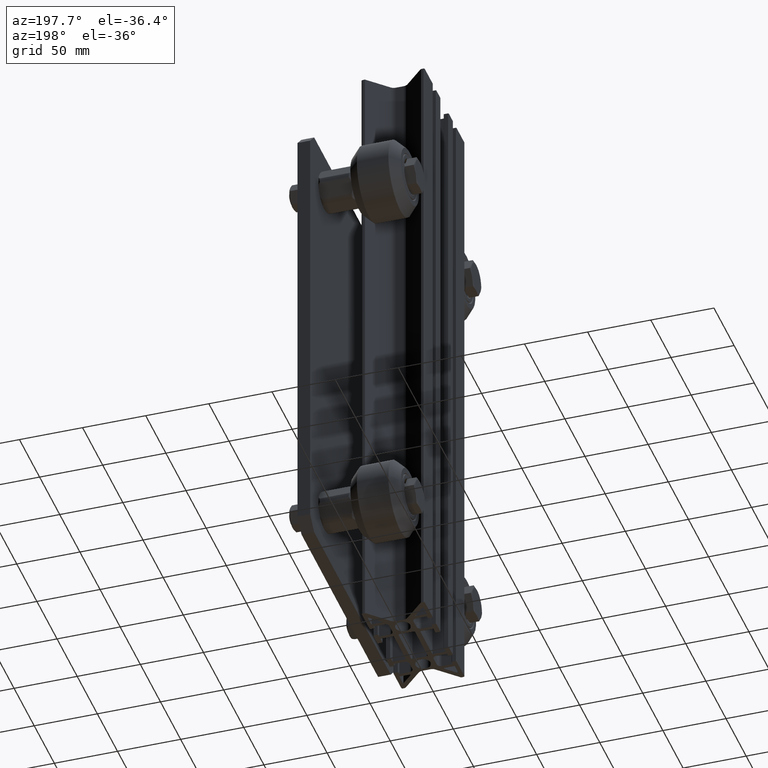
[diagram: clean part render]
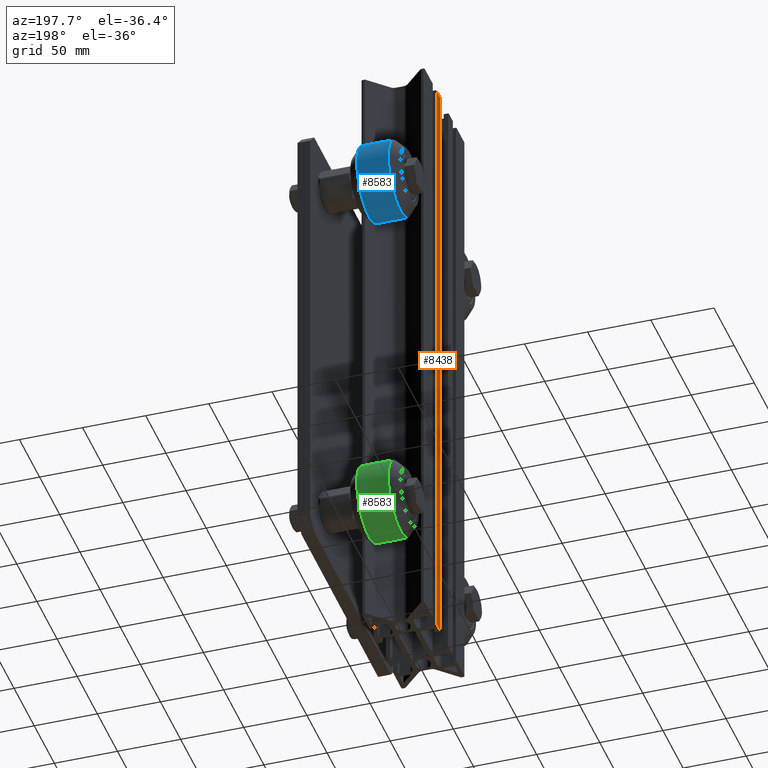
[diagram: same view with three faces highlighted in distinct colors, each labeled with its STEP entity id]
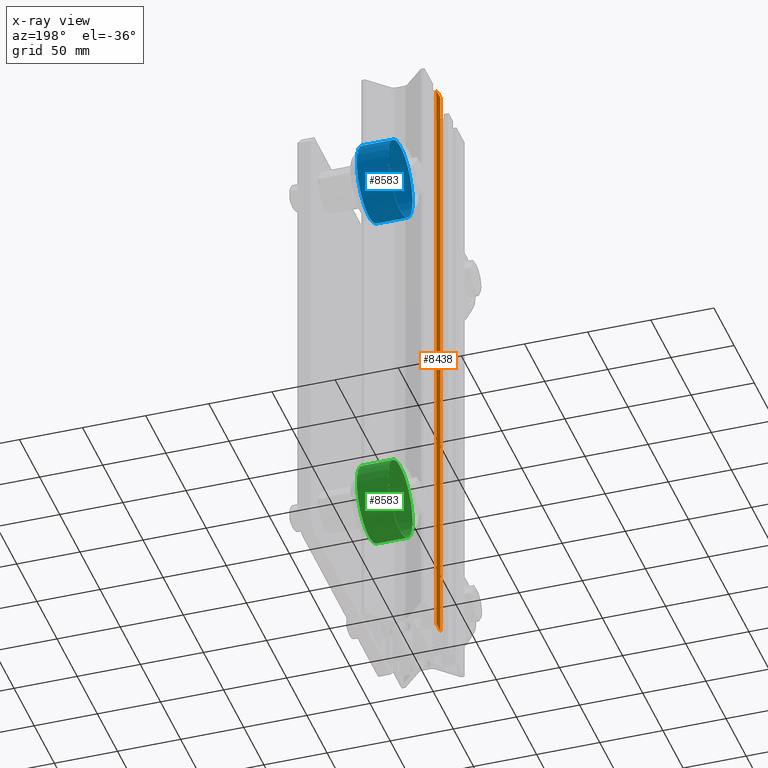
[diagram: x-ray of the same camera — body ghosted, the three highlighted faces saturated]
A machine part, auxiliary view with three faces highlighted in distinct colors.
The next image is the same camera in x-ray (body ghosted, the three faces saturated) — at least one of them is partly hidden behind the body in this view.
Their STEP definitions:

[orange] entity #8438 — the highlighted planar face has unit normal (-1, -0, 0).
#680=FACE_OUTER_BOUND('',#1154,.T.);
#1154=EDGE_LOOP('',(#6020,#6021,#6022,#6023));
#2058=LINE('',#12726,#2692);
#2168=LINE('',#13083,#2802);
#2243=LINE('',#13287,#2877);
#2244=LINE('',#13289,#2878);
#2692=VECTOR('',#10181,10.);
#2802=VECTOR('',#10497,10.);
#2877=VECTOR('',#10702,10.);
#2878=VECTOR('',#10705,10.);
#3354=VERTEX_POINT('',#12723);
#3355=VERTEX_POINT('',#12725);
#3498=VERTEX_POINT('',#13080);
#3499=VERTEX_POINT('',#13082);
#4226=EDGE_CURVE('',#3354,#3355,#2058,.T.);
#4404=EDGE_CURVE('',#3498,#3499,#2168,.T.);
#4507=EDGE_CURVE('',#3498,#3355,#2243,.T.);
#4508=EDGE_CURVE('',#3499,#3354,#2244,.T.);
#6020=ORIENTED_EDGE('',*,*,#4507,.T.);
#6021=ORIENTED_EDGE('',*,*,#4226,.F.);
#6022=ORIENTED_EDGE('',*,*,#4508,.F.);
#6023=ORIENTED_EDGE('',*,*,#4404,.F.);
#8099=PLANE('',#9343);
#8438=ADVANCED_FACE('',(#680),#8099,.T.);
#9343=AXIS2_PLACEMENT_3D('',#13288,#10703,#10704);
#10181=DIRECTION('',(9.01703979389996E-16,-1.,0.));
#10497=DIRECTION('',(-9.01703979389997E-16,1.,0.));
#10702=DIRECTION('',(0.,0.,1.));
#10703=DIRECTION('center_axis',(-1.,-9.01703979389997E-16,0.));
#10704=DIRECTION('ref_axis',(9.01703979389997E-16,-1.,0.));
#10705=DIRECTION('',(0.,0.,1.));
#12723=CARTESIAN_POINT('',(-25.0000000000018,20.3500000000001,450.));
#12725=CARTESIAN_POINT('',(-25.0000000000018,10.4999999999893,450.));
#12726=CARTESIAN_POINT('',(-25.0000000000018,20.3500000000001,450.));
#13080=CARTESIAN_POINT('',(-25.0000000000018,10.4999999999893,-50.));
#13082=CARTESIAN_POINT('',(-25.0000000000018,20.3500000000001,-50.));
#13083=CARTESIAN_POINT('',(-25.0000000000018,20.3500000000001,-50.));
#13287=CARTESIAN_POINT('',(-25.0000000000018,10.4999999999893,0.));
#13288=CARTESIAN_POINT('Origin',(-25.0000000000018,20.3500000000001,0.));
#13289=CARTESIAN_POINT('',(-25.0000000000018,20.3500000000001,0.));

[blue] entity #8583 — the highlighted cylindrical surface (bore or boss wall) has radius 30 mm, axis along (-1, -0, -0).
#525=CYLINDRICAL_SURFACE('',#9561,30.);
#825=FACE_OUTER_BOUND('',#1319,.T.);
#1319=EDGE_LOOP('',(#6640,#6641,#6642,#6643));
#1777=CIRCLE('',#9560,30.);
#1778=CIRCLE('',#9562,30.);
#2391=LINE('',#14099,#3025);
#3025=VECTOR('',#11290,30.);
#3679=VERTEX_POINT('',#14093);
#3680=VERTEX_POINT('',#14097);
#4750=EDGE_CURVE('',#3679,#3679,#1777,.T.);
#4752=EDGE_CURVE('',#3680,#3680,#1778,.T.);
#4753=EDGE_CURVE('',#3680,#3679,#2391,.T.);
#6640=ORIENTED_EDGE('',*,*,#4752,.F.);
#6641=ORIENTED_EDGE('',*,*,#4753,.T.);
#6642=ORIENTED_EDGE('',*,*,#4750,.T.);
#6643=ORIENTED_EDGE('',*,*,#4753,.F.);
#8583=ADVANCED_FACE('',(#825),#525,.T.);
#9560=AXIS2_PLACEMENT_3D('',#14094,#11283,#11284);
#9561=AXIS2_PLACEMENT_3D('',#14096,#11286,#11287);
#9562=AXIS2_PLACEMENT_3D('',#14098,#11288,#11289);
#11283=DIRECTION('center_axis',(1.,0.,0.));
#11284=DIRECTION('ref_axis',(0.,1.,0.));
#11286=DIRECTION('center_axis',(1.,0.,0.));
#11287=DIRECTION('ref_axis',(0.,1.,0.));
#11288=DIRECTION('center_axis',(1.,0.,0.));
#11289=DIRECTION('ref_axis',(0.,1.,0.));
#11290=DIRECTION('',(-1.,0.,0.));
#14093=CARTESIAN_POINT('',(-12.5,-30.,-3.67394039744206E-15));
#14094=CARTESIAN_POINT('Origin',(-12.5,0.,0.));
#14096=CARTESIAN_POINT('Origin',(0.,0.,0.));
#14097=CARTESIAN_POINT('',(12.5,-30.,-3.67394039744206E-15));
#14098=CARTESIAN_POINT('Origin',(12.5,0.,0.));
#14099=CARTESIAN_POINT('',(0.,-30.,-3.67394039744206E-15));

[green] entity #8583 — the highlighted cylindrical surface (bore or boss wall) has radius 30 mm, axis along (-1, -0, -0).
#525=CYLINDRICAL_SURFACE('',#9561,30.);
#825=FACE_OUTER_BOUND('',#1319,.T.);
#1319=EDGE_LOOP('',(#6640,#6641,#6642,#6643));
#1777=CIRCLE('',#9560,30.);
#1778=CIRCLE('',#9562,30.);
#2391=LINE('',#14099,#3025);
#3025=VECTOR('',#11290,30.);
#3679=VERTEX_POINT('',#14093);
#3680=VERTEX_POINT('',#14097);
#4750=EDGE_CURVE('',#3679,#3679,#1777,.T.);
#4752=EDGE_CURVE('',#3680,#3680,#1778,.T.);
#4753=EDGE_CURVE('',#3680,#3679,#2391,.T.);
#6640=ORIENTED_EDGE('',*,*,#4752,.F.);
#6641=ORIENTED_EDGE('',*,*,#4753,.T.);
#6642=ORIENTED_EDGE('',*,*,#4750,.T.);
#6643=ORIENTED_EDGE('',*,*,#4753,.F.);
#8583=ADVANCED_FACE('',(#825),#525,.T.);
#9560=AXIS2_PLACEMENT_3D('',#14094,#11283,#11284);
#9561=AXIS2_PLACEMENT_3D('',#14096,#11286,#11287);
#9562=AXIS2_PLACEMENT_3D('',#14098,#11288,#11289);
#11283=DIRECTION('center_axis',(1.,0.,0.));
#11284=DIRECTION('ref_axis',(0.,1.,0.));
#11286=DIRECTION('center_axis',(1.,0.,0.));
#11287=DIRECTION('ref_axis',(0.,1.,0.));
#11288=DIRECTION('center_axis',(1.,0.,0.));
#11289=DIRECTION('ref_axis',(0.,1.,0.));
#11290=DIRECTION('',(-1.,0.,0.));
#14093=CARTESIAN_POINT('',(-12.5,-30.,-3.67394039744206E-15));
#14094=CARTESIAN_POINT('Origin',(-12.5,0.,0.));
#14096=CARTESIAN_POINT('Origin',(0.,0.,0.));
#14097=CARTESIAN_POINT('',(12.5,-30.,-3.67394039744206E-15));
#14098=CARTESIAN_POINT('Origin',(12.5,0.,0.));
#14099=CARTESIAN_POINT('',(0.,-30.,-3.67394039744206E-15));